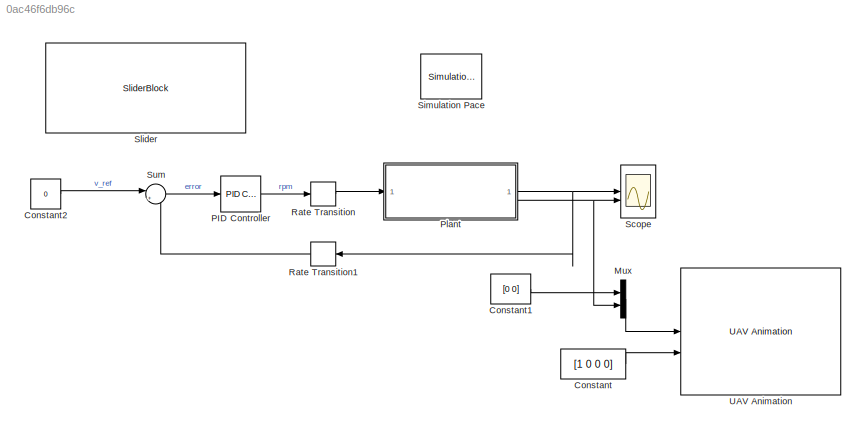
MODEL slx_0ac46f6db96c
KIND model
CONFIG AbsTol = auto
CONFIG EnableMultiTasking = off
CONFIG FixedStep = auto
CONFIG MaxStep = auto
CONFIG MinStep = auto
CONFIG RelTol = 1e-3
CONFIG SampleTimeConstraint = Unconstrained
CONFIG SolverName = VariableStepAuto
CONFIG StartTime = 0.0
CONFIG StopTime = inf
BLOCK [Constant] Constant
  Value = [1 0 0 0]
BLOCK [Constant] Constant1
  Value = [0 0]
BLOCK [Constant] Constant2
  Value = 0
BLOCK [Mux] Mux
  DisplayOption = bar
  Inputs = 2
BLOCK [Reference] PID Controller  REF=slpidlib/PID Controller
  LibrarySourceBlock = simulink/Continuous/PID Controller
  SourceBlock = slpidlib/PID Controller
  SourceType = PID 1dof
BLOCK [ModelReference] Plant
  ModelNameDialog = Final_Plant
  ModelReferenceVersion = 1.4
BLOCK [RateTransition] Rate Transition
BLOCK [RateTransition] Rate Transition1
BLOCK [Scope] Scope
  Floating = off
  NumInputPorts = 2
  ScopeSpecificationString = Simulink.scopes.TimeScopeBlockCfg('CurrentConfiguration', extmgr.ConfigurationSet(extmgr.Configuration('Core','General UI',true),extmgr.Configuration('Core','Source UI',true),extmgr.Configuration('Sources','WiredSimulink',true),extmgr.Configuration('Visuals','Time Domain',true,'SerializedDisplays',{struct('MinYLimReal','-1.06397','MaxYLimReal','0.67377','YLabelReal','','MinYLimMag','0.00000','MaxY...<+2156ch>
BLOCK [Reference] Simulation Pace  REF=aerolibanimutils/Simulation Pace
  AttributesFormatString = %<SleepMode>\n%<SimulationPace> sec/sec
  SourceBlock = aerolibanimutils/Simulation Pace
  SourceType = Simulation Pace
BLOCK [SliderBlock] Slider
  ScaleMax = 10
  ScaleMin = -10
BLOCK [Sum] Sum
  Inputs = |+-
BLOCK [Reference] UAV Animation  REF=uavutilslib/UAV Animation
  SourceBlock = uavutilslib/UAV Animation
  SourceType = uav.sluav.internal.system.UAVAnimation
LINE Constant1:1 -> Mux:1
LINE Constant2:1 -> Sum:1
LINE Constant:1 -> UAV Animation:2
LINE Mux:1 -> UAV Animation:1
LINE PID Controller:1 -> Rate Transition:1
NET Plant:1 -> Rate Transition1:1, Scope:1
NET Plant:2 -> Mux:2, Scope:2
LINE Rate Transition1:1 -> Sum:2
LINE Rate Transition:1 -> Plant:1
LINE Sum:1 -> PID Controller:1
note: NET lines group one-source signal fan-out (src -> all destinations, sorted); 1:1 wires keep LINE
